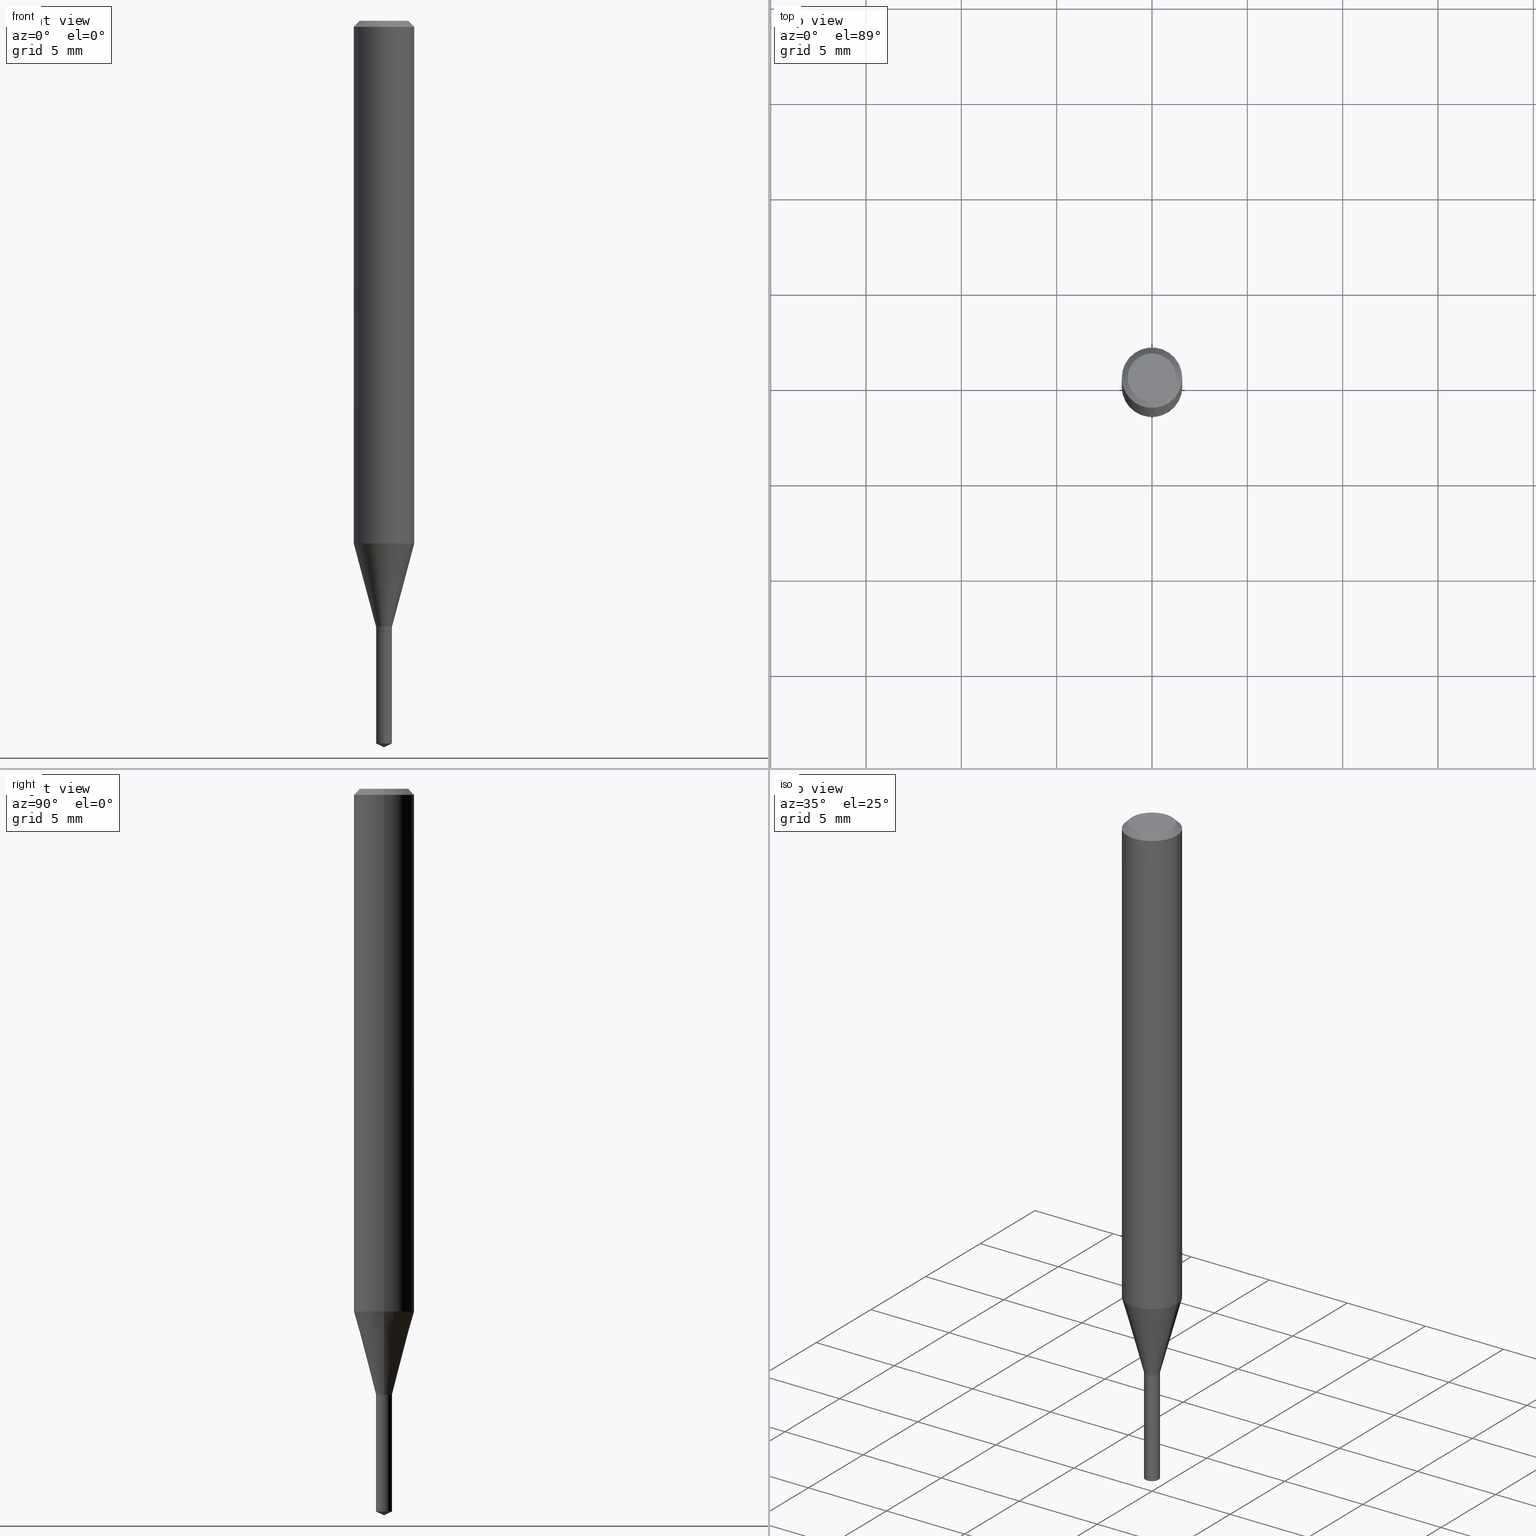
[diagram: canonical four-view strip — front | top / right | iso, engineering-drawing reading convention]
A machine part, canonical four-view strip (front | top / right | iso — engineering-drawing reading convention). The complete STEP part file that produces these views, byte-faithful:
ISO-10303-21;
HEADER;
FILE_DESCRIPTION (( 'STEP AP203' ),
    '1' );
FILE_NAME ('07142.STEP',
    '2024-04-23T19:42:01',
    ( '' ),
    ( '' ),
    'SwSTEP 2.0',
    'SolidWorks 2023',
    '' );
FILE_SCHEMA (( 'CONFIG_CONTROL_DESIGN' ));
ENDSEC;

DATA;
#1 = COORDINATED_UNIVERSAL_TIME_OFFSET ( 5, 0, .BEHIND. ) ;
#2 = DIRECTION ( 'NONE',  ( -2.442957897581693293E-29, 3.495077102875318834E-15, 1.000000000000000000 ) ) ;
#3 = CARTESIAN_POINT ( 'NONE',  ( 0.01650000000000000078, -4.483062039074598658E-15, -1.251000000000000112 ) ) ;
#4 = CIRCLE ( 'NONE', #466, 0.06250000000000013878 ) ;
#5 = AXIS2_PLACEMENT_3D ( 'NONE', #206, #423, #274 ) ;
#6 = APPLICATION_CONTEXT ( 'configuration controlled 3d designs of mechanical parts and assemblies' ) ;
#7 = MANIFOLD_SOLID_BREP ( 'Body-Move/Copy2[1]', #287 ) ;
#8 = CALENDAR_DATE ( 2024, 23, 4 ) ;
#9 = CC_DESIGN_DATE_AND_TIME_ASSIGNMENT ( #253, #432, ( #208 ) ) ;
#10 = DIRECTION ( 'NONE',  ( 0.000000000000000000, 0.000000000000000000, 1.000000000000000000 ) ) ;
#11 = AXIS2_PLACEMENT_3D ( 'NONE', #380, #478, #334 ) ;
#12 = SECURITY_CLASSIFICATION_LEVEL ( 'unclassified' ) ;
#13 = ORIENTED_EDGE ( 'NONE', *, *, #348, .F. ) ;
#14 = PERSON_AND_ORGANIZATION_ROLE ( 'creator' ) ;
#15 = EDGE_LOOP ( 'NONE', ( #218, #13, #179, #142 ) ) ;
#16 = ORIENTED_EDGE ( 'NONE', *, *, #461, .T. ) ;
#17 = AXIS2_PLACEMENT_3D ( 'NONE', #439, #371, #261 ) ;
#18 = PERSON_AND_ORGANIZATION_ROLE ( 'classification_officer' ) ;
#19 = CARTESIAN_POINT ( 'NONE',  ( 2.690015686803650369E-29, -3.840629472727460101E-15, -1.100000000000000089 ) ) ;
#20 = ADVANCED_FACE ( 'NONE', ( #289 ), #137, .F. ) ;
#21 = ORIENTED_EDGE ( 'NONE', *, *, #386, .F. ) ;
#22 = APPROVAL ( #100, 'UNSPECIFIED' ) ;
#23 = DIRECTION ( 'NONE',  ( -6.982962677686266711E-15, -1.000000000000000000, 0.000000000000000000 ) ) ;
#24 = ORIENTED_EDGE ( 'NONE', *, *, #322, .T. ) ;
#25 = ADVANCED_FACE ( 'NONE', ( #366 ), #85, .T. ) ;
#26 = AXIS2_PLACEMENT_3D ( 'NONE', #109, #451, #64 ) ;
#27 = ADVANCED_FACE ( 'NONE', ( #225 ), #188, .T. ) ;
#28 = CARTESIAN_POINT ( 'NONE',  ( -0.06250000000000006939, 4.440892098500631092E-16, -3.074334431409319267E-30 ) ) ;
#29 = LINE ( 'NONE', #191, #251 ) ;
#30 = DIRECTION ( 'NONE',  ( -2.445468806185136877E-29, 3.491481338843145188E-15, 1.000000000000000000 ) ) ;
#31 = CARTESIAN_POINT ( 'NONE',  ( 0.01650000000000000078, -3.954102616239861778E-15, -1.099499999999999922 ) ) ;
#32 = FACE_OUTER_BOUND ( 'NONE', #361, .T. ) ;
#33 = DIRECTION ( 'NONE',  ( 1.000000000000000000, -6.982962677686271444E-15, 0.000000000000000000 ) ) ;
#34 = ADVANCED_FACE ( 'NONE', ( #381 ), #78, .T. ) ;
#35 = VERTEX_POINT ( 'NONE', #201 ) ;
#36 = DIRECTION ( 'NONE',  ( -2.445468806185136877E-29, 3.491481338843145188E-15, 1.000000000000000000 ) ) ;
#37 = CARTESIAN_POINT ( 'NONE',  ( 3.059281476537606349E-29, -4.367843154892775478E-15, -1.251000000000000112 ) ) ;
#38 = ORIENTED_EDGE ( 'NONE', *, *, #215, .T. ) ;
#39 = DIRECTION ( 'NONE',  ( -2.445468806185136597E-29, 3.491481338843145583E-15, 1.000000000000000000 ) ) ;
#40 = FACE_OUTER_BOUND ( 'NONE', #55, .T. ) ;
#41 = ADVANCED_FACE ( 'NONE', ( #306 ), #356, .T. ) ;
#42 = CARTESIAN_POINT ( 'NONE',  ( 2.690015686803650369E-29, -3.840629472727460101E-15, -1.100000000000000089 ) ) ;
#43 = AXIS2_PLACEMENT_3D ( 'NONE', #342, #235, #378 ) ;
#44 = AXIS2_PLACEMENT_3D ( 'NONE', #190, #339, #237 ) ;
#45 = DIRECTION ( 'NONE',  ( -2.442957897581693293E-29, 3.495077102875318834E-15, 1.000000000000000000 ) ) ;
#46 = APPROVAL ( #353, 'UNSPECIFIED' ) ;
#47 =( NAMED_UNIT ( * ) SI_UNIT ( $, .STERADIAN. ) SOLID_ANGLE_UNIT ( ) );
#48 = ORIENTED_EDGE ( 'NONE', *, *, #250, .F. ) ;
#49 = CARTESIAN_POINT ( 'NONE',  ( -0.06250000000000000000, 3.927916506198520587E-16, -0.01250000000000008396 ) ) ;
#50 = ORIENTED_EDGE ( 'NONE', *, *, #215, .F. ) ;
#51 = VECTOR ( 'NONE', #224, 39.37007874015748143 ) ;
#52 = ADVANCED_FACE ( 'NONE', ( #490 ), #143, .T. ) ;
#53 = PERSON_AND_ORGANIZATION ( #233, #320 ) ;
#54 = VERTEX_POINT ( 'NONE', #118 ) ;
#55 = EDGE_LOOP ( 'NONE', ( #134, #428, #370, #258 ) ) ;
#56 = EDGE_CURVE ( 'NONE', #106, #397, #212, .T. ) ;
#57 = CARTESIAN_POINT ( 'NONE',  ( 0.01600000000000000033, -3.952356875570440274E-15, -1.100000000000000089 ) ) ;
#58 = ORIENTED_EDGE ( 'NONE', *, *, #146, .F. ) ;
#59 = AXIS2_PLACEMENT_3D ( 'NONE', #411, #440, #229 ) ;
#60 = DATE_AND_TIME ( #90, #400 ) ;
#61 = LINE ( 'NONE', #462, #51 ) ;
#62 = DIRECTION ( 'NONE',  ( 1.000000000000000000, -6.982962677686266711E-15, 4.876176775795935793E-29 ) ) ;
#63 = CC_DESIGN_DATE_AND_TIME_ASSIGNMENT ( #163, #308, ( #117 ) ) ;
#64 = DIRECTION ( 'NONE',  ( 1.000000000000000000, -6.982962677686266711E-15, 0.000000000000000000 ) ) ;
#65 = ORIENTED_EDGE ( 'NONE', *, *, #377, .T. ) ;
#66 = ADVANCED_FACE ( 'NONE', ( #338 ), #385, .F. ) ;
#67 = LINE ( 'NONE', #228, #207 ) ;
#68 = CARTESIAN_POINT ( 'NONE',  ( 2.690015686803650369E-29, -3.840629472727460101E-15, -1.100000000000000089 ) ) ;
#69 = AXIS2_PLACEMENT_3D ( 'NONE', #101, #256, #62 ) ;
#70 = CIRCLE ( 'NONE', #318, 0.01600000000000000033 ) ;
#71 = DIRECTION ( 'NONE',  ( 0.2588190451025281225, 1.565188264969568128E-15, 0.9659258262890662028 ) ) ;
#72 = DIRECTION ( 'NONE',  ( -2.442957897581693293E-29, 3.495077102875319228E-15, 1.000000000000000000 ) ) ;
#73 = CARTESIAN_POINT ( 'NONE',  ( 3.056836007731441415E-31, -4.364351673553961684E-17, -0.01250000000000008396 ) ) ;
#74 = DIRECTION ( 'NONE',  ( -2.445468806185136597E-29, 3.491481338843145583E-15, 1.000000000000000000 ) ) ;
#75 = VERTEX_POINT ( 'NONE', #273 ) ;
#76 = CARTESIAN_POINT ( 'NONE',  ( 2.690015686803650369E-29, -3.840629472727460101E-15, -1.100000000000000089 ) ) ;
#77 = CYLINDRICAL_SURFACE ( 'NONE', #43, 0.06250000000000006939 ) ;
#78 = CONICAL_SURFACE ( 'NONE', #104, 84.42940631927278616, 1.134464013796308901 ) ;
#79 = CIRCLE ( 'NONE', #26, 0.06250000000000000000 ) ;
#80 = DIRECTION ( 'NONE',  ( -2.445468806185136597E-29, 3.491481338843145583E-15, 1.000000000000000000 ) ) ;
#81 = APPROVAL ( #121, 'UNSPECIFIED' ) ;
#82 = PERSON_AND_ORGANIZATION ( #233, #320 ) ;
#83 = ADVANCED_FACE ( 'NONE', ( #194 ), #77, .T. ) ;
#84 = DIRECTION ( 'NONE',  ( -6.982962677686266711E-15, -1.000000000000000000, 0.000000000000000000 ) ) ;
#85 = CONICAL_SURFACE ( 'NONE', #311, 0.01600000000000000033, 0.7853981633974119747 ) ;
#86 = VECTOR ( 'NONE', #184, 39.37007874015748143 ) ;
#87 = CARTESIAN_POINT ( 'NONE',  ( 0.000000000000000000, 0.000000000000000000, 0.000000000000000000 ) ) ;
#88 = LOCAL_TIME ( 15, 42, 1.000000000000000000, #93 ) ;
#89 = EDGE_CURVE ( 'NONE', #161, #113, #120, .T. ) ;
#90 = CALENDAR_DATE ( 2024, 23, 4 ) ;
#91 = DIMENSIONAL_EXPONENTS ( 1.000000000000000000, 0.000000000000000000, 0.000000000000000000, 0.000000000000000000, 0.000000000000000000, 0.000000000000000000, 0.000000000000000000 ) ;
#92 = EDGE_LOOP ( 'NONE', ( #332, #38, #465 ) ) ;
#93 = COORDINATED_UNIVERSAL_TIME_OFFSET ( 5, 0, .BEHIND. ) ;
#94 = AXIS2_PLACEMENT_3D ( 'NONE', #262, #232, #417 ) ;
#95 = ORIENTED_EDGE ( 'NONE', *, *, #221, .T. ) ;
#96 = VECTOR ( 'NONE', #314, 39.37007874015748143 ) ;
#97 = EDGE_CURVE ( 'NONE', #113, #161, #4, .T. ) ;
#98 = CALENDAR_DATE ( 2024, 23, 4 ) ;
#99 = ORIENTED_EDGE ( 'NONE', *, *, #123, .T. ) ;
#100 = APPROVAL_STATUS ( 'not_yet_approved' ) ;
#101 = CARTESIAN_POINT ( 'NONE',  ( 0.000000000000000000, 0.000000000000000000, 0.000000000000000000 ) ) ;
#102 = CC_DESIGN_PERSON_AND_ORGANIZATION_ASSIGNMENT ( #315, #319, ( #117 ) ) ;
#103 = ORIENTED_EDGE ( 'NONE', *, *, #123, .F. ) ;
#104 = AXIS2_PLACEMENT_3D ( 'NONE', #238, #345, #112 ) ;
#105 = LINE ( 'NONE', #49, #473 ) ;
#106 = VERTEX_POINT ( 'NONE', #31 ) ;
#107 = DIRECTION ( 'NONE',  ( -2.445468806185136877E-29, 3.491481338843145188E-15, 1.000000000000000000 ) ) ;
#108 = DIRECTION ( 'NONE',  ( 1.000000000000000000, -6.982962677686271444E-15, 0.000000000000000000 ) ) ;
#109 = CARTESIAN_POINT ( 'NONE',  ( 3.056836007731441415E-31, -4.364351673553961684E-17, -0.01250000000000008396 ) ) ;
#110 = DIRECTION ( 'NONE',  ( -2.445468806185136597E-29, 3.491481338843145583E-15, 1.000000000000000000 ) ) ;
#111 = DIRECTION ( 'NONE',  ( -0.2588190451025281225, 5.211531920934590485E-15, 0.9659258262890662028 ) ) ;
#112 = DIRECTION ( 'NONE',  ( -6.982962677686268288E-15, -1.000000000000000000, 3.520397390770518557E-15 ) ) ;
#113 = VERTEX_POINT ( 'NONE', #241 ) ;
#114 = DIRECTION ( 'NONE',  ( 2.445468806185136597E-29, -3.491481338843145583E-15, -1.000000000000000000 ) ) ;
#115 = FACE_OUTER_BOUND ( 'NONE', #393, .T. ) ;
#116 =( CONVERSION_BASED_UNIT ( 'INCH', #203 ) LENGTH_UNIT ( ) NAMED_UNIT ( #91 ) );
#117 = PRODUCT_DEFINITION ( 'UNKNOWN', '', #180, #328 ) ;
#118 = CARTESIAN_POINT ( 'NONE',  ( -0.04999999999999999584, 3.709698922520826725E-16, 3.380025165621512536E-19 ) ) ;
#119 = ORIENTED_EDGE ( 'NONE', *, *, #250, .T. ) ;
#120 = CIRCLE ( 'NONE', #94, 0.06250000000000013878 ) ;
#121 = APPROVAL_STATUS ( 'not_yet_approved' ) ;
#122 = AXIS2_PLACEMENT_3D ( 'NONE', #487, #298, #303 ) ;
#123 = EDGE_CURVE ( 'NONE', #313, #54, #266, .T. ) ;
#124 = ORIENTED_EDGE ( 'NONE', *, *, #97, .F. ) ;
#125 = DIRECTION ( 'NONE',  ( -2.442957897581693293E-29, 3.495077102875318834E-15, 1.000000000000000000 ) ) ;
#126 = EDGE_CURVE ( 'NONE', #286, #185, #70, .T. ) ;
#127 = PERSON_AND_ORGANIZATION ( #233, #320 ) ;
#128 = AXIS2_PLACEMENT_3D ( 'NONE', #87, #316, #392 ) ;
#129 = CARTESIAN_POINT ( 'NONE',  ( 3.648402541229150417E-29, -5.211768923765523479E-15, -1.492305923640442566 ) ) ;
#130 = LOCAL_TIME ( 15, 42, 1.000000000000000000, #1 ) ;
#131 = DIRECTION ( 'NONE',  ( -0.7071067811865452413, 2.468850131082233000E-15, -0.7071067811865497932 ) ) ;
#132 = EDGE_LOOP ( 'NONE', ( #103, #471, #16, #211 ) ) ;
#133 = ADVANCED_FACE ( 'NONE', ( #442 ), #277, .T. ) ;
#134 = ORIENTED_EDGE ( 'NONE', *, *, #357, .F. ) ;
#135 = VECTOR ( 'NONE', #111, 39.37007874015748854 ) ;
#136 = ADVANCED_BREP_SHAPE_REPRESENTATION ( '07142', ( #7, #173, #335 ), #458 ) ;
#137 = CYLINDRICAL_SURFACE ( 'NONE', #69, 0.01650000000000000078 ) ;
#138 = DATE_AND_TIME ( #98, #288 ) ;
#139 = CARTESIAN_POINT ( 'NONE',  ( -4.132873053354867254E-48, 5.900647395337818946E-34, 1.690012582823346072E-19 ) ) ;
#140 = DIRECTION ( 'NONE',  ( 1.000000000000000000, -6.982962677686271444E-15, 0.000000000000000000 ) ) ;
#141 = CARTESIAN_POINT ( 'NONE',  ( 3.664436846372539659E-29, -5.242615654312978645E-15, -1.500000000000000222 ) ) ;
#142 = ORIENTED_EDGE ( 'NONE', *, *, #56, .T. ) ;
#143 = CONICAL_SURFACE ( 'NONE', #437, 0.06250000000000000000, 0.7853981633974450594 ) ;
#144 = CONICAL_SURFACE ( 'NONE', #350, 0.06250000000000000000, 0.7853981633974450594 ) ;
#145 = LINE ( 'NONE', #295, #166 ) ;
#146 = EDGE_CURVE ( 'NONE', #185, #106, #448, .T. ) ;
#147 = PLANE ( 'NONE',  #59 ) ;
#148 = CARTESIAN_POINT ( 'NONE',  ( -0.01600000000000000033, -3.724293407831733559E-15, -1.100000000000000089 ) ) ;
#149 = DIRECTION ( 'NONE',  ( 0.7071067811865218156, -2.468850131081987665E-15, 0.7071067811865732189 ) ) ;
#150 = DIRECTION ( 'NONE',  ( 1.000000000000000000, -6.982962677686243834E-15, 0.000000000000000000 ) ) ;
#151 = DIRECTION ( 'NONE',  ( 1.000000000000000000, -6.982962677686265922E-15, 4.876194921942043128E-29 ) ) ;
#152 = ADVANCED_FACE ( 'NONE', ( #115 ), #147, .F. ) ;
#153 = AXIS2_PLACEMENT_3D ( 'NONE', #387, #45, #84 ) ;
#154 = CC_DESIGN_SECURITY_CLASSIFICATION ( #208, ( #180 ) ) ;
#155 = CARTESIAN_POINT ( 'NONE',  ( 0.04999999999999999584, -4.077247707424184705E-16, 3.380025165673154903E-19 ) ) ;
#156 = DIRECTION ( 'NONE',  ( -2.445468806185136597E-29, 3.491481338843145583E-15, 1.000000000000000000 ) ) ;
#157 = EDGE_LOOP ( 'NONE', ( #119, #325, #177, #58 ) ) ;
#158 = PRODUCT_RELATED_PRODUCT_CATEGORY ( 'detail', '', ( #249 ) ) ;
#159 = CARTESIAN_POINT ( 'NONE',  ( -1.152188841817869415E-16, -0.01650000000000521883, -1.492305923640442566 ) ) ;
#160 = CARTESIAN_POINT ( 'NONE',  ( 3.056836007731441415E-31, -4.364351673553961684E-17, -0.01250000000000008396 ) ) ;
#161 = VERTEX_POINT ( 'NONE', #373 ) ;
#162 = EDGE_CURVE ( 'NONE', #399, #35, #29, .T. ) ;
#163 = DATE_AND_TIME ( #384, #351 ) ;
#164 = EDGE_LOOP ( 'NONE', ( #396, #321, #199, #124 ) ) ;
#165 =( LENGTH_UNIT ( ) NAMED_UNIT ( * ) SI_UNIT ( $, .METRE. ) );
#166 = VECTOR ( 'NONE', #107, 39.37007874015748143 ) ;
#167 = EDGE_CURVE ( 'NONE', #54, #313, #372, .T. ) ;
#168 = CARTESIAN_POINT ( 'NONE',  ( 0.000000000000000000, 0.000000000000000000, 0.000000000000000000 ) ) ;
#169 = DATE_AND_TIME ( #8, #130 ) ;
#170 = APPLICATION_PROTOCOL_DEFINITION ( 'international standard', 'config_control_design', 1994, #195 ) ;
#171 = CIRCLE ( 'NONE', #230, 0.01650000000000000078 ) ;
#172 = DIRECTION ( 'NONE',  ( -6.328713451373352024E-15, -0.9063077870366461619, 0.4226182617407073239 ) ) ;
#173 = MANIFOLD_SOLID_BREP ( 'Body-Move/Copy2[2]', #220 ) ;
#174 = ORIENTED_EDGE ( 'NONE', *, *, #167, .T. ) ;
#175 = COORDINATED_UNIVERSAL_TIME_OFFSET ( 5, 0, .BEHIND. ) ;
#176 = ADVANCED_FACE ( 'NONE', ( #352 ), #459, .F. ) ;
#177 = ORIENTED_EDGE ( 'NONE', *, *, #56, .F. ) ;
#178 = AXIS2_PLACEMENT_3D ( 'NONE', #129, #2, #310 ) ;
#179 = ORIENTED_EDGE ( 'NONE', *, *, #426, .T. ) ;
#180 = PRODUCT_DEFINITION_FORMATION_WITH_SPECIFIED_SOURCE ( 'ANY', '', #249, .NOT_KNOWN. ) ;
#181 = APPROVAL_ROLE ( '' ) ;
#182 = ORIENTED_EDGE ( 'NONE', *, *, #377, .F. ) ;
#183 = EDGE_CURVE ( 'NONE', #399, #278, #485, .T. ) ;
#184 = DIRECTION ( 'NONE',  ( -2.445468806185136877E-29, 3.491481338843145188E-15, 1.000000000000000000 ) ) ;
#185 = VERTEX_POINT ( 'NONE', #57 ) ;
#186 = LINE ( 'NONE', #475, #389 ) ;
#187 = CARTESIAN_POINT ( 'NONE',  ( 2.690015686803650369E-29, -3.840629472727460101E-15, -1.100000000000000089 ) ) ;
#188 = CONICAL_SURFACE ( 'NONE', #276, 0.01600000000000000033, 0.7853981633974119747 ) ;
#189 = VECTOR ( 'NONE', #36, 39.37007874015748143 ) ;
#190 = CARTESIAN_POINT ( 'NONE',  ( 3.059281476537606349E-29, -4.367843154892775478E-15, -1.251000000000000112 ) ) ;
#191 = CARTESIAN_POINT ( 'NONE',  ( -1.152188841817965065E-16, -0.01650000000000384492, -1.100000000000000089 ) ) ;
#192 = CARTESIAN_POINT ( 'NONE',  ( 0.01650000000000000078, -4.483062039074598658E-15, -1.251000000000000112 ) ) ;
#193 = ADVANCED_FACE ( 'NONE', ( #219 ), #329, .F. ) ;
#194 = FACE_OUTER_BOUND ( 'NONE', #433, .T. ) ;
#195 = APPLICATION_CONTEXT ( 'configuration controlled 3d designs of mechanical parts and assemblies' ) ;
#196 = CARTESIAN_POINT ( 'NONE',  ( 3.059281476537606349E-29, -4.367843154892775478E-15, -1.251000000000000112 ) ) ;
#197 = CARTESIAN_POINT ( 'NONE',  ( 2.690015686803650369E-29, -3.840629472727460101E-15, -1.100000000000000089 ) ) ;
#198 = VECTOR ( 'NONE', #172, 39.37007874015748854 ) ;
#199 = ORIENTED_EDGE ( 'NONE', *, *, #379, .T. ) ;
#200 = CYLINDRICAL_SURFACE ( 'NONE', #222, 0.01650000000000000078 ) ;
#201 = CARTESIAN_POINT ( 'NONE',  ( -1.152188841817964818E-16, -0.01650000000000384145, -1.100000000000000089 ) ) ;
#202 = EDGE_CURVE ( 'NONE', #278, #330, #61, .T. ) ;
#203 = LENGTH_MEASURE_WITH_UNIT ( LENGTH_MEASURE( 0.02539999999999999897 ), #165 );
#204 = ORIENTED_EDGE ( 'NONE', *, *, #146, .T. ) ;
#205 = DIRECTION ( 'NONE',  ( -6.982962677686265133E-15, -1.000000000000000000, 0.000000000000000000 ) ) ;
#206 = CARTESIAN_POINT ( 'NONE',  ( 3.056836007731441415E-31, -4.364351673553961684E-17, -0.01250000000000008396 ) ) ;
#207 = VECTOR ( 'NONE', #284, 39.37007874015748143 ) ;
#208 = SECURITY_CLASSIFICATION ( '', '', #12 ) ;
#209 =( NAMED_UNIT ( * ) PLANE_ANGLE_UNIT ( ) SI_UNIT ( $, .RADIAN. ) );
#210 = EDGE_CURVE ( 'NONE', #161, #236, #359, .T. ) ;
#211 = ORIENTED_EDGE ( 'NONE', *, *, #221, .F. ) ;
#212 = CIRCLE ( 'NONE', #472, 0.01650000000000000078 ) ;
#213 = AXIS2_PLACEMENT_3D ( 'NONE', #340, #482, #151 ) ;
#214 = EDGE_LOOP ( 'NONE', ( #405, #223, #415, #355 ) ) ;
#215 = EDGE_CURVE ( 'NONE', #368, #399, #470, .T. ) ;
#216 = APPROVAL_ROLE ( '' ) ;
#217 = ORIENTED_EDGE ( 'NONE', *, *, #429, .F. ) ;
#218 = ORIENTED_EDGE ( 'NONE', *, *, #268, .F. ) ;
#219 = FACE_OUTER_BOUND ( 'NONE', #436, .T. ) ;
#220 = CLOSED_SHELL ( 'NONE', ( #27, #52, #83, #363, #176, #20, #41, #480, #333, #193, #152, #25 ) ) ;
#221 = EDGE_CURVE ( 'NONE', #54, #307, #105, .T. ) ;
#222 = AXIS2_PLACEMENT_3D ( 'NONE', #76, #302, #272 ) ;
#223 = ORIENTED_EDGE ( 'NONE', *, *, #268, .T. ) ;
#224 = DIRECTION ( 'NONE',  ( -2.442957897581693293E-29, 3.495077102875319228E-15, 1.000000000000000000 ) ) ;
#225 = FACE_OUTER_BOUND ( 'NONE', #157, .T. ) ;
#226 = CARTESIAN_POINT ( 'NONE',  ( 2.690015686803650369E-29, -3.840629472727460101E-15, -1.100000000000000089 ) ) ;
#227 = ORIENTED_EDGE ( 'NONE', *, *, #412, .T. ) ;
#228 = CARTESIAN_POINT ( 'NONE',  ( -0.01600000000000000033, -3.726942635005843971E-15, -1.100000000000000089 ) ) ;
#229 = DIRECTION ( 'NONE',  ( 1.000000000000000000, -6.982962677686265922E-15, 4.876176775795935793E-29 ) ) ;
#230 = AXIS2_PLACEMENT_3D ( 'NONE', #196, #416, #150 ) ;
#231 = FACE_OUTER_BOUND ( 'NONE', #271, .T. ) ;
#232 = DIRECTION ( 'NONE',  ( -2.445468806185136597E-29, 3.491481338843145583E-15, 1.000000000000000000 ) ) ;
#233 = PERSON ( 'UNSPECIFIED', 'UNSPECIFIED', 'UNSPECIFIED', ('UNSPECIFIED'), ('UNSPECIFIED'), ('UNSPECIFIED') ) ;
#234 = DIRECTION ( 'NONE',  ( -2.442957897581693293E-29, 3.495077102875318834E-15, 1.000000000000000000 ) ) ;
#235 = DIRECTION ( 'NONE',  ( -2.445468806185136597E-29, 3.491481338843145583E-15, 1.000000000000000000 ) ) ;
#236 = VERTEX_POINT ( 'NONE', #285 ) ;
#237 = DIRECTION ( 'NONE',  ( 1.000000000000000000, -6.982962677686243834E-15, 0.000000000000000000 ) ) ;
#238 = CARTESIAN_POINT ( 'NONE',  ( -9.251224594084451282E-28, 1.323628004292452236E-13, 37.87007874015748143 ) ) ;
#239 = CIRCLE ( 'NONE', #153, 0.01650000000000000078 ) ;
#240 = COORDINATED_UNIVERSAL_TIME_OFFSET ( 5, 0, .BEHIND. ) ;
#241 = CARTESIAN_POINT ( 'NONE',  ( -0.06250000000000013878, -3.324356200531632040E-15, -1.079325662851836398 ) ) ;
#242 = ORIENTED_EDGE ( 'NONE', *, *, #435, .F. ) ;
#243 = CARTESIAN_POINT ( 'NONE',  ( 0.06250000000000000000, -4.724246415962603826E-16, -0.01250000000000008396 ) ) ;
#244 = ORIENTED_EDGE ( 'NONE', *, *, #167, .F. ) ;
#245 = CIRCLE ( 'NONE', #326, 0.01650000000000000078 ) ;
#246 = EDGE_CURVE ( 'NONE', #75, #488, #444, .T. ) ;
#247 = CYLINDRICAL_SURFACE ( 'NONE', #301, 0.06250000000000006939 ) ;
#248 = APPLICATION_PROTOCOL_DEFINITION ( 'international standard', 'config_control_design', 1994, #6 ) ;
#249 = PRODUCT ( '07142', '07142', '', ( #347 ) ) ;
#250 = EDGE_CURVE ( 'NONE', #185, #286, #358, .T. ) ;
#251 = VECTOR ( 'NONE', #72, 39.37007874015748143 ) ;
#252 = ORIENTED_EDGE ( 'NONE', *, *, #379, .F. ) ;
#253 = DATE_AND_TIME ( #398, #88 ) ;
#254 = ORIENTED_EDGE ( 'NONE', *, *, #126, .F. ) ;
#255 = COORDINATED_UNIVERSAL_TIME_OFFSET ( 5, 0, .BEHIND. ) ;
#256 = DIRECTION ( 'NONE',  ( -2.445468806185136597E-29, 3.491481338843145583E-15, 1.000000000000000000 ) ) ;
#257 = DIRECTION ( 'NONE',  ( 2.438088387897960049E-29, -3.491481338843145188E-15, -1.000000000000000000 ) ) ;
#258 = ORIENTED_EDGE ( 'NONE', *, *, #322, .F. ) ;
#259 = CARTESIAN_POINT ( 'NONE',  ( -0.01650000000000000078, -4.250603603492358449E-15, -1.251000000000000112 ) ) ;
#260 = EDGE_LOOP ( 'NONE', ( #50, #227, #438 ) ) ;
#261 = DIRECTION ( 'NONE',  ( 1.000000000000000000, -6.982962677686271444E-15, 0.000000000000000000 ) ) ;
#262 = CARTESIAN_POINT ( 'NONE',  ( 2.639457240219261592E-29, -3.768445410381695839E-15, -1.079325662851836398 ) ) ;
#263 = ADVANCED_FACE ( 'NONE', ( #407 ), #200, .T. ) ;
#264 = DIRECTION ( 'NONE',  ( -1.000000000000000000, 6.982962677686266711E-15, 0.000000000000000000 ) ) ;
#265 = CARTESIAN_POINT ( 'NONE',  ( -8.265746106709734507E-48, 1.180129479067563789E-33, 3.380025165646692144E-19 ) ) ;
#266 = CIRCLE ( 'NONE', #283, 0.04999999999999999584 ) ;
#267 = VECTOR ( 'NONE', #30, 39.37007874015748143 ) ;
#268 = EDGE_CURVE ( 'NONE', #75, #397, #447, .T. ) ;
#269 = FACE_OUTER_BOUND ( 'NONE', #453, .T. ) ;
#270 = DIRECTION ( 'NONE',  ( -2.445468806185136597E-29, 3.491481338843145583E-15, 1.000000000000000000 ) ) ;
#271 = EDGE_LOOP ( 'NONE', ( #383, #293, #388, #252 ) ) ;
#272 = DIRECTION ( 'NONE',  ( -6.982962677686266711E-15, -1.000000000000000000, 0.000000000000000000 ) ) ;
#273 = CARTESIAN_POINT ( 'NONE',  ( -0.01650000000000000078, -3.986123892074990009E-15, -1.251000000000000112 ) ) ;
#274 = DIRECTION ( 'NONE',  ( 1.000000000000000000, -6.982962677686266711E-15, 0.000000000000000000 ) ) ;
#275 = DIRECTION ( 'NONE',  ( 1.000000000000000000, -6.982962677686273810E-15, 0.000000000000000000 ) ) ;
#276 = AXIS2_PLACEMENT_3D ( 'NONE', #197, #156, #108 ) ;
#277 = CONICAL_SURFACE ( 'NONE', #122, 84.42940631927278616, 1.134464013796308901 ) ;
#278 = VERTEX_POINT ( 'NONE', #344 ) ;
#279 = CC_DESIGN_APPROVAL ( #46, ( #117 ) ) ;
#280 = DIRECTION ( 'NONE',  ( 1.000000000000000000, 0.000000000000000000, 0.000000000000000000 ) ) ;
#281 = CC_DESIGN_PERSON_AND_ORGANIZATION_ASSIGNMENT ( #292, #427, ( #180 ) ) ;
#282 = PERSON_AND_ORGANIZATION_ROLE ( 'design_owner' ) ;
#283 = AXIS2_PLACEMENT_3D ( 'NONE', #265, #110, #336 ) ;
#284 = DIRECTION ( 'NONE',  ( -0.7071067811865218156, 7.493145998870261075E-15, 0.7071067811865732189 ) ) ;
#285 = CARTESIAN_POINT ( 'NONE',  ( 0.06250000000000000000, -4.800786840909313294E-16, -0.01250000000000008396 ) ) ;
#286 = VERTEX_POINT ( 'NONE', #148 ) ;
#287 = CLOSED_SHELL ( 'NONE', ( #406, #34, #133, #263, #66 ) ) ;
#288 = LOCAL_TIME ( 15, 42, 1.000000000000000000, #175 ) ;
#289 = FACE_OUTER_BOUND ( 'NONE', #15, .T. ) ;
#290 = APPROVAL_DATE_TIME ( #138, #81 ) ;
#291 = EDGE_LOOP ( 'NONE', ( #217, #360, #204, #21 ) ) ;
#292 = PERSON_AND_ORGANIZATION ( #233, #320 ) ;
#293 = ORIENTED_EDGE ( 'NONE', *, *, #402, .T. ) ;
#294 = ORIENTED_EDGE ( 'NONE', *, *, #183, .T. ) ;
#295 = CARTESIAN_POINT ( 'NONE',  ( 0.01650000000000000078, -1.152188841818234017E-16, 8.045691680063294479E-31 ) ) ;
#296 = DIRECTION ( 'NONE',  ( -2.445468806185136597E-29, 3.491481338843145583E-15, 1.000000000000000000 ) ) ;
#297 = CARTESIAN_POINT ( 'NONE',  ( 1.172395514004530950E-16, 0.01649999999999616010, -1.100000000000000089 ) ) ;
#298 = DIRECTION ( 'NONE',  ( -2.442957897581693293E-29, 3.495077102875318834E-15, 1.000000000000000000 ) ) ;
#299 = CARTESIAN_POINT ( 'NONE',  ( 2.688792952400557567E-29, -3.838883732058038598E-15, -1.099499999999999922 ) ) ;
#300 = DIRECTION ( 'NONE',  ( 1.000000000000000000, -6.982962677686243834E-15, 0.000000000000000000 ) ) ;
#301 = AXIS2_PLACEMENT_3D ( 'NONE', #349, #39, #421 ) ;
#302 = DIRECTION ( 'NONE',  ( -2.442957897581693293E-29, 3.495077102875318834E-15, 1.000000000000000000 ) ) ;
#303 = DIRECTION ( 'NONE',  ( -6.982962677686268288E-15, -1.000000000000000000, 3.520397390770518557E-15 ) ) ;
#304 = ORIENTED_EDGE ( 'NONE', *, *, #357, .T. ) ;
#305 = LINE ( 'NONE', #259, #135 ) ;
#306 = FACE_OUTER_BOUND ( 'NONE', #164, .T. ) ;
#307 = VERTEX_POINT ( 'NONE', #376 ) ;
#308 = DATE_TIME_ROLE ( 'creation_date' ) ;
#309 = CC_DESIGN_PERSON_AND_ORGANIZATION_ASSIGNMENT ( #324, #18, ( #208 ) ) ;
#310 = DIRECTION ( 'NONE',  ( -6.982962677686266711E-15, -1.000000000000000000, 0.000000000000000000 ) ) ;
#311 = AXIS2_PLACEMENT_3D ( 'NONE', #19, #469, #140 ) ;
#312 = AXIS2_PLACEMENT_3D ( 'NONE', #409, #234, #484 ) ;
#313 = VERTEX_POINT ( 'NONE', #155 ) ;
#314 = DIRECTION ( 'NONE',  ( 0.7071067811865452413, -7.319954787623248157E-15, -0.7071067811865497932 ) ) ;
#315 = PERSON_AND_ORGANIZATION ( #233, #320 ) ;
#316 = DIRECTION ( 'NONE',  ( -2.445468806185136597E-29, 3.491481338843145583E-15, 1.000000000000000000 ) ) ;
#317 = AXIS2_PLACEMENT_3D ( 'NONE', #187, #479, #418 ) ;
#318 = AXIS2_PLACEMENT_3D ( 'NONE', #68, #296, #33 ) ;
#319 = PERSON_AND_ORGANIZATION_ROLE ( 'creator' ) ;
#320 = ORGANIZATION ( 'UNSPECIFIED', 'UNSPECIFIED', '' ) ;
#321 = ORIENTED_EDGE ( 'NONE', *, *, #246, .T. ) ;
#322 = EDGE_CURVE ( 'NONE', #307, #236, #79, .T. ) ;
#323 = EDGE_LOOP ( 'NONE', ( #327, #364, #460, #182 ) ) ;
#324 = PERSON_AND_ORGANIZATION ( #233, #320 ) ;
#325 = ORIENTED_EDGE ( 'NONE', *, *, #429, .T. ) ;
#326 = AXIS2_PLACEMENT_3D ( 'NONE', #299, #337, #374 ) ;
#327 = ORIENTED_EDGE ( 'NONE', *, *, #202, .F. ) ;
#328 = DESIGN_CONTEXT ( 'detailed design', #6, 'design' ) ;
#329 = PLANE ( 'NONE',  #382 ) ;
#330 = VERTEX_POINT ( 'NONE', #297 ) ;
#331 = CC_DESIGN_PERSON_AND_ORGANIZATION_ASSIGNMENT ( #53, #14, ( #180 ) ) ;
#332 = ORIENTED_EDGE ( 'NONE', *, *, #412, .F. ) ;
#333 = ADVANCED_FACE ( 'NONE', ( #32 ), #144, .T. ) ;
#334 = DIRECTION ( 'NONE',  ( 1.000000000000000000, -6.982962677686243834E-15, 0.000000000000000000 ) ) ;
#335 = AXIS2_PLACEMENT_3D ( 'NONE', #168, #10, #280 ) ;
#336 = DIRECTION ( 'NONE',  ( 1.000000000000000000, -6.982962677686265922E-15, 4.876194921942043128E-29 ) ) ;
#337 = DIRECTION ( 'NONE',  ( -2.445468806185136597E-29, 3.491481338843145583E-15, 1.000000000000000000 ) ) ;
#338 = FACE_OUTER_BOUND ( 'NONE', #449, .T. ) ;
#339 = DIRECTION ( 'NONE',  ( -2.445468806185136597E-29, 3.491481338843145583E-15, 1.000000000000000000 ) ) ;
#340 = CARTESIAN_POINT ( 'NONE',  ( -8.265746106709734507E-48, 1.180129479067563789E-33, 3.380025165646692144E-19 ) ) ;
#341 = CARTESIAN_POINT ( 'NONE',  ( 3.664436846372539659E-29, -5.242615654312978645E-15, -1.500000000000000222 ) ) ;
#342 = CARTESIAN_POINT ( 'NONE',  ( 0.000000000000000000, 0.000000000000000000, 0.000000000000000000 ) ) ;
#343 = CC_DESIGN_APPROVAL ( #22, ( #208 ) ) ;
#344 = CARTESIAN_POINT ( 'NONE',  ( 1.172395514004530457E-16, 0.01649999999999479314, -1.492305923640442566 ) ) ;
#345 = DIRECTION ( 'NONE',  ( -2.442957897581693293E-29, 3.495077102875318834E-15, 1.000000000000000000 ) ) ;
#346 = CC_DESIGN_PERSON_AND_ORGANIZATION_ASSIGNMENT ( #127, #282, ( #249 ) ) ;
#347 = MECHANICAL_CONTEXT ( 'NONE', #195, 'mechanical' ) ;
#348 = EDGE_CURVE ( 'NONE', #488, #75, #171, .T. ) ;
#349 = CARTESIAN_POINT ( 'NONE',  ( 0.000000000000000000, 0.000000000000000000, 0.000000000000000000 ) ) ;
#350 = AXIS2_PLACEMENT_3D ( 'NONE', #73, #114, #264 ) ;
#351 = LOCAL_TIME ( 15, 42, 1.000000000000000000, #240 ) ;
#352 = FACE_OUTER_BOUND ( 'NONE', #214, .T. ) ;
#353 = APPROVAL_STATUS ( 'not_yet_approved' ) ;
#354 = LINE ( 'NONE', #243, #96 ) ;
#355 = ORIENTED_EDGE ( 'NONE', *, *, #426, .F. ) ;
#356 = CONICAL_SURFACE ( 'NONE', #483, 0.01650000000000000078, 0.2617993877991570684 ) ;
#357 = EDGE_CURVE ( 'NONE', #113, #307, #441, .T. ) ;
#358 = CIRCLE ( 'NONE', #17, 0.01600000000000000033 ) ;
#359 = LINE ( 'NONE', #367, #86 ) ;
#360 = ORIENTED_EDGE ( 'NONE', *, *, #126, .T. ) ;
#361 = EDGE_LOOP ( 'NONE', ( #242, #244, #95, #24 ) ) ;
#362 = SHAPE_DEFINITION_REPRESENTATION ( #434, #136 ) ;
#363 = ADVANCED_FACE ( 'NONE', ( #231 ), #394, .T. ) ;
#364 = ORIENTED_EDGE ( 'NONE', *, *, #457, .T. ) ;
#365 = CIRCLE ( 'NONE', #312, 0.01650000000000000078 ) ;
#366 = FACE_OUTER_BOUND ( 'NONE', #291, .T. ) ;
#367 = CARTESIAN_POINT ( 'NONE',  ( 0.06250000000000006939, -4.364351673553921624E-16, 3.047610484872463374E-30 ) ) ;
#368 = VERTEX_POINT ( 'NONE', #341 ) ;
#369 = DIRECTION ( 'NONE',  ( -2.442957897581693293E-29, 3.495077102875318834E-15, 1.000000000000000000 ) ) ;
#370 = ORIENTED_EDGE ( 'NONE', *, *, #210, .T. ) ;
#371 = DIRECTION ( 'NONE',  ( -2.445468806185136597E-29, 3.491481338843145583E-15, 1.000000000000000000 ) ) ;
#372 = CIRCLE ( 'NONE', #213, 0.04999999999999999584 ) ;
#373 = CARTESIAN_POINT ( 'NONE',  ( 0.06250000000000013878, -4.204880577737087508E-15, -1.079325662851836398 ) ) ;
#374 = DIRECTION ( 'NONE',  ( 1.000000000000000000, -6.982962677686273810E-15, 0.000000000000000000 ) ) ;
#375 = CARTESIAN_POINT ( 'NONE',  ( 0.01600000000000000033, -3.952356875570440274E-15, -1.100000000000000089 ) ) ;
#376 = CARTESIAN_POINT ( 'NONE',  ( -0.06250000000000000000, -1.461955253708553901E-15, -0.01250000000000008396 ) ) ;
#377 = EDGE_CURVE ( 'NONE', #330, #35, #365, .T. ) ;
#378 = DIRECTION ( 'NONE',  ( 1.000000000000000000, -6.982962677686266711E-15, 4.876176775795935793E-29 ) ) ;
#379 = EDGE_CURVE ( 'NONE', #488, #161, #489, .T. ) ;
#380 = CARTESIAN_POINT ( 'NONE',  ( 3.059281476537606349E-29, -4.367843154892775478E-15, -1.251000000000000112 ) ) ;
#381 = FACE_OUTER_BOUND ( 'NONE', #260, .T. ) ;
#382 = AXIS2_PLACEMENT_3D ( 'NONE', #139, #257, #401 ) ;
#383 = ORIENTED_EDGE ( 'NONE', *, *, #348, .T. ) ;
#384 = CALENDAR_DATE ( 2024, 23, 4 ) ;
#385 = PLANE ( 'NONE',  #317 ) ;
#386 = EDGE_CURVE ( 'NONE', #397, #106, #245, .T. ) ;
#387 = CARTESIAN_POINT ( 'NONE',  ( 3.648402541229150417E-29, -5.211768923765523479E-15, -1.492305923640442566 ) ) ;
#388 = ORIENTED_EDGE ( 'NONE', *, *, #89, .F. ) ;
#389 = VECTOR ( 'NONE', #413, 39.37007874015748854 ) ;
#390 = CIRCLE ( 'NONE', #5, 0.06250000000000000000 ) ;
#391 = APPROVAL_DATE_TIME ( #169, #46 ) ;
#392 = DIRECTION ( 'NONE',  ( 1.000000000000000000, -6.982962677686266711E-15, 4.876176775795935793E-29 ) ) ;
#393 = EDGE_LOOP ( 'NONE', ( #48, #254 ) ) ;
#394 = CONICAL_SURFACE ( 'NONE', #44, 0.01650000000000000078, 0.2617993877991570684 ) ;
#395 = APPROVAL_DATE_TIME ( #60, #22 ) ;
#396 = ORIENTED_EDGE ( 'NONE', *, *, #402, .F. ) ;
#397 = VERTEX_POINT ( 'NONE', #443 ) ;
#398 = CALENDAR_DATE ( 2024, 23, 4 ) ;
#399 = VERTEX_POINT ( 'NONE', #159 ) ;
#400 = LOCAL_TIME ( 15, 42, 1.000000000000000000, #255 ) ;
#401 = DIRECTION ( 'NONE',  ( -1.000000000000000000, 6.982962677686265922E-15, -4.876176775795935793E-29 ) ) ;
#402 = EDGE_CURVE ( 'NONE', #75, #113, #305, .T. ) ;
#403 = ORIENTED_EDGE ( 'NONE', *, *, #89, .T. ) ;
#404 = CYLINDRICAL_SURFACE ( 'NONE', #410, 0.01650000000000000078 ) ;
#405 = ORIENTED_EDGE ( 'NONE', *, *, #246, .F. ) ;
#406 = ADVANCED_FACE ( 'NONE', ( #269 ), #404, .T. ) ;
#407 = FACE_OUTER_BOUND ( 'NONE', #323, .T. ) ;
#408 = CARTESIAN_POINT ( 'NONE',  ( 2.639457240219261592E-29, -3.768445410381695839E-15, -1.079325662851836398 ) ) ;
#409 = CARTESIAN_POINT ( 'NONE',  ( 2.690015686803650369E-29, -3.840629472727460101E-15, -1.100000000000000089 ) ) ;
#410 = AXIS2_PLACEMENT_3D ( 'NONE', #226, #369, #23 ) ;
#411 = CARTESIAN_POINT ( 'NONE',  ( 2.690015686803650369E-29, -3.840629472727460101E-15, -1.100000000000000089 ) ) ;
#412 = EDGE_CURVE ( 'NONE', #368, #278, #186, .T. ) ;
#413 = DIRECTION ( 'NONE',  ( 6.439704144417007476E-15, 0.9063077870366490485, 0.4226182617407009956 ) ) ;
#414 = DIRECTION ( 'NONE',  ( -1.000000000000000000, 6.982962677686266711E-15, 0.000000000000000000 ) ) ;
#415 = ORIENTED_EDGE ( 'NONE', *, *, #386, .T. ) ;
#416 = DIRECTION ( 'NONE',  ( -2.445468806185136597E-29, 3.491481338843145583E-15, 1.000000000000000000 ) ) ;
#417 = DIRECTION ( 'NONE',  ( 1.000000000000000000, -6.982962677686270655E-15, 0.000000000000000000 ) ) ;
#418 = DIRECTION ( 'NONE',  ( 6.982962677686265922E-15, 1.000000000000000000, -3.495077102875319228E-15 ) ) ;
#419 = VECTOR ( 'NONE', #71, 39.37007874015748854 ) ;
#420 = APPROVAL_PERSON_ORGANIZATION ( #454, #81, #216 ) ;
#421 = DIRECTION ( 'NONE',  ( 1.000000000000000000, -6.982962677686266711E-15, 4.876176775795935793E-29 ) ) ;
#422 = ORIENTED_EDGE ( 'NONE', *, *, #450, .T. ) ;
#423 = DIRECTION ( 'NONE',  ( -2.445468806185136597E-29, 3.491481338843145583E-15, 1.000000000000000000 ) ) ;
#424 = APPROVAL_ROLE ( '' ) ;
#425 = APPROVAL_PERSON_ORGANIZATION ( #82, #46, #424 ) ;
#426 = EDGE_CURVE ( 'NONE', #488, #106, #145, .T. ) ;
#427 = PERSON_AND_ORGANIZATION_ROLE ( 'design_supplier' ) ;
#428 = ORIENTED_EDGE ( 'NONE', *, *, #97, .T. ) ;
#429 = EDGE_CURVE ( 'NONE', #286, #397, #67, .T. ) ;
#430 = AXIS2_PLACEMENT_3D ( 'NONE', #42, #125, #205 ) ;
#431 = ORIENTED_EDGE ( 'NONE', *, *, #162, .F. ) ;
#432 = DATE_TIME_ROLE ( 'classification_date' ) ;
#433 = EDGE_LOOP ( 'NONE', ( #403, #304, #463, #446 ) ) ;
#434 = PRODUCT_DEFINITION_SHAPE ( 'NONE', 'NONE',  #117 ) ;
#435 = EDGE_CURVE ( 'NONE', #313, #236, #354, .T. ) ;
#436 = EDGE_LOOP ( 'NONE', ( #174, #99 ) ) ;
#437 = AXIS2_PLACEMENT_3D ( 'NONE', #160, #452, #414 ) ;
#438 = ORIENTED_EDGE ( 'NONE', *, *, #183, .F. ) ;
#439 = CARTESIAN_POINT ( 'NONE',  ( 2.690015686803650369E-29, -3.840629472727460101E-15, -1.100000000000000089 ) ) ;
#440 = DIRECTION ( 'NONE',  ( -2.438088387897960049E-29, 3.491481338843145188E-15, 1.000000000000000000 ) ) ;
#441 = LINE ( 'NONE', #28, #189 ) ;
#442 = FACE_OUTER_BOUND ( 'NONE', #92, .T. ) ;
#443 = CARTESIAN_POINT ( 'NONE',  ( -0.01650000000000000078, -3.986123892074990009E-15, -1.099499999999999922 ) ) ;
#444 = CIRCLE ( 'NONE', #11, 0.01650000000000000078 ) ;
#445 = CARTESIAN_POINT ( 'NONE',  ( 2.688792952400557567E-29, -3.838883732058038598E-15, -1.099499999999999922 ) ) ;
#446 = ORIENTED_EDGE ( 'NONE', *, *, #210, .F. ) ;
#447 = LINE ( 'NONE', #481, #267 ) ;
#448 = LINE ( 'NONE', #375, #455 ) ;
#449 = EDGE_LOOP ( 'NONE', ( #422, #65 ) ) ;
#450 = EDGE_CURVE ( 'NONE', #35, #330, #467, .T. ) ;
#451 = DIRECTION ( 'NONE',  ( -2.445468806185136597E-29, 3.491481338843145583E-15, 1.000000000000000000 ) ) ;
#452 = DIRECTION ( 'NONE',  ( 2.445468806185136597E-29, -3.491481338843145583E-15, -1.000000000000000000 ) ) ;
#453 = EDGE_LOOP ( 'NONE', ( #294, #468, #456, #431 ) ) ;
#454 = PERSON_AND_ORGANIZATION ( #233, #320 ) ;
#455 = VECTOR ( 'NONE', #149, 39.37007874015748143 ) ;
#456 = ORIENTED_EDGE ( 'NONE', *, *, #450, .F. ) ;
#457 = EDGE_CURVE ( 'NONE', #278, #399, #239, .T. ) ;
#458 =( GEOMETRIC_REPRESENTATION_CONTEXT ( 3 ) GLOBAL_UNCERTAINTY_ASSIGNED_CONTEXT ( ( #477 ) ) GLOBAL_UNIT_ASSIGNED_CONTEXT ( ( #116, #209, #47 ) ) REPRESENTATION_CONTEXT ( 'NONE', 'WORKASPACE' ) );
#459 = CYLINDRICAL_SURFACE ( 'NONE', #128, 0.01650000000000000078 ) ;
#460 = ORIENTED_EDGE ( 'NONE', *, *, #162, .T. ) ;
#461 = EDGE_CURVE ( 'NONE', #236, #307, #390, .T. ) ;
#462 = CARTESIAN_POINT ( 'NONE',  ( 1.172395514004434314E-16, 0.01649999999999616010, -1.100000000000000089 ) ) ;
#463 = ORIENTED_EDGE ( 'NONE', *, *, #461, .F. ) ;
#464 = PERSON_AND_ORGANIZATION ( #233, #320 ) ;
#465 = ORIENTED_EDGE ( 'NONE', *, *, #457, .F. ) ;
#466 = AXIS2_PLACEMENT_3D ( 'NONE', #408, #80, #476 ) ;
#467 = CIRCLE ( 'NONE', #430, 0.01650000000000000078 ) ;
#468 = ORIENTED_EDGE ( 'NONE', *, *, #202, .T. ) ;
#469 = DIRECTION ( 'NONE',  ( -2.445468806185136597E-29, 3.491481338843145583E-15, 1.000000000000000000 ) ) ;
#470 = LINE ( 'NONE', #141, #198 ) ;
#471 = ORIENTED_EDGE ( 'NONE', *, *, #435, .T. ) ;
#472 = AXIS2_PLACEMENT_3D ( 'NONE', #445, #74, #275 ) ;
#473 = VECTOR ( 'NONE', #131, 39.37007874015748143 ) ;
#474 = CC_DESIGN_APPROVAL ( #81, ( #180 ) ) ;
#475 = CARTESIAN_POINT ( 'NONE',  ( 3.670009284250152623E-29, -5.234704973442197256E-15, -1.500000000000000222 ) ) ;
#476 = DIRECTION ( 'NONE',  ( 1.000000000000000000, -6.982962677686270655E-15, 0.000000000000000000 ) ) ;
#477 = UNCERTAINTY_MEASURE_WITH_UNIT (LENGTH_MEASURE( 1.000000000000000082E-05 ), #116, 'distance_accuracy_value', 'NONE');
#478 = DIRECTION ( 'NONE',  ( -2.445468806185136597E-29, 3.491481338843145583E-15, 1.000000000000000000 ) ) ;
#479 = DIRECTION ( 'NONE',  ( 2.442957897581692732E-29, -3.495077102875319228E-15, -1.000000000000000000 ) ) ;
#480 = ADVANCED_FACE ( 'NONE', ( #40 ), #247, .T. ) ;
#481 = CARTESIAN_POINT ( 'NONE',  ( -0.01650000000000000078, 1.172395514004165362E-16, -8.116242898920594736E-31 ) ) ;
#482 = DIRECTION ( 'NONE',  ( -2.445468806185136597E-29, 3.491481338843145583E-15, 1.000000000000000000 ) ) ;
#483 = AXIS2_PLACEMENT_3D ( 'NONE', #37, #270, #300 ) ;
#484 = DIRECTION ( 'NONE',  ( -6.982962677686265133E-15, -1.000000000000000000, 0.000000000000000000 ) ) ;
#485 = CIRCLE ( 'NONE', #178, 0.01650000000000000078 ) ;
#486 = APPROVAL_PERSON_ORGANIZATION ( #464, #22, #181 ) ;
#487 = CARTESIAN_POINT ( 'NONE',  ( -9.251224594084451282E-28, 1.323628004292452236E-13, 37.87007874015748143 ) ) ;
#488 = VERTEX_POINT ( 'NONE', #3 ) ;
#489 = LINE ( 'NONE', #192, #419 ) ;
#490 = FACE_OUTER_BOUND ( 'NONE', #132, .T. ) ;
ENDSEC;
END-ISO-10303-21;
